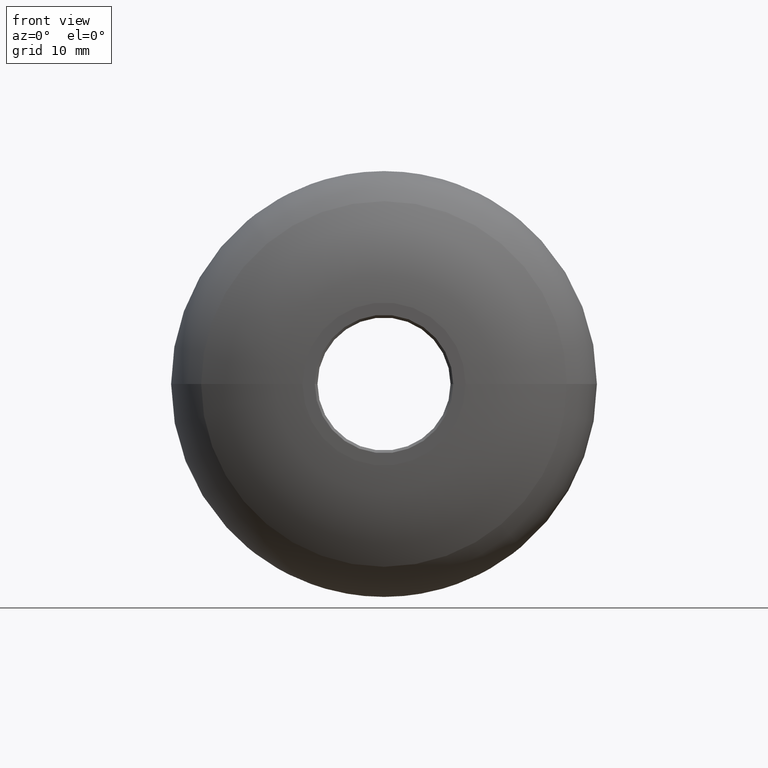
[diagram: clean part render]
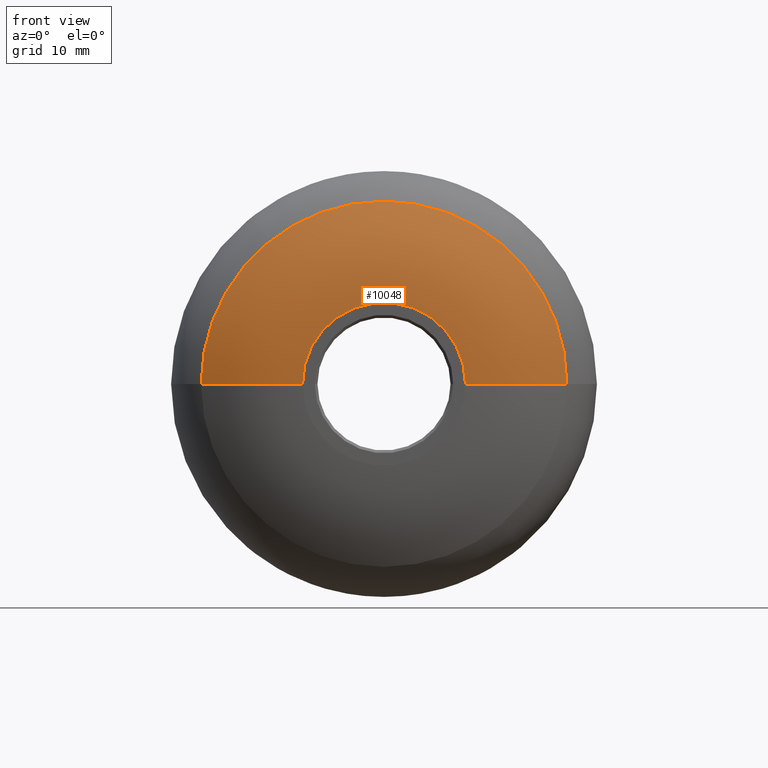
[diagram: same view with one face highlighted and labeled with its STEP entity id]
A machine part, front view. The second image highlights one B-rep face of the part: STEP entity #10048.
In plain terms, the highlighted toroidal blend (fillet) surface has major radius 7.659 mm and minor (blend) radius 16.4313 mm.
Its self-contained STEP definition (entity closure, byte-faithful):
#110 = ORIENTED_EDGE ( 'NONE', *, *, #7656, .T. ) ;
#470 = AXIS2_PLACEMENT_3D ( 'NONE', #10095, #2491, #10847 ) ;
#679 = DIRECTION ( 'NONE',  ( -0.000000000000000000, 0.000000000000000000, -1.000000000000000000 ) ) ;
#749 = VERTEX_POINT ( 'NONE', #9187 ) ;
#832 = EDGE_LOOP ( 'NONE', ( #10433, #110, #2088, #8148 ) ) ;
#849 = EDGE_CURVE ( 'NONE', #864, #4831, #10438, .T. ) ;
#864 = VERTEX_POINT ( 'NONE', #7247 ) ;
#1071 = CARTESIAN_POINT ( 'NONE',  ( 0.000000000000000000, 16.43130050804137809, 0.000000000000000000 ) ) ;
#2088 = ORIENTED_EDGE ( 'NONE', *, *, #7345, .F. ) ;
#2277 = CARTESIAN_POINT ( 'NONE',  ( -7.658953207742919211, 16.43130050804137809, 0.000000000000000000 ) ) ;
#2491 = DIRECTION ( 'NONE',  ( -1.224646799147353207E-16, 3.845537904261165162E-34, 1.000000000000000000 ) ) ;
#2928 = DIRECTION ( 'NONE',  ( -1.000000000000000000, 0.000000000000000000, 0.000000000000000000 ) ) ;
#3590 = TOROIDAL_SURFACE ( 'NONE', #8318, 7.658953207742919211, 16.43130050804137454 ) ;
#3937 = CARTESIAN_POINT ( 'NONE',  ( 7.658953207742919211, -2.405003212995326053E-17, 1.520593612288826337E-15 ) ) ;
#4589 = DIRECTION ( 'NONE',  ( 3.140119997813719199E-18, 1.000000000000000000, -0.000000000000000000 ) ) ;
#4831 = VERTEX_POINT ( 'NONE', #3937 ) ;
#5181 = CARTESIAN_POINT ( 'NONE',  ( 17.17422503348586815, 3.035508688675746747, 2.103235971509481566E-15 ) ) ;
#5360 = AXIS2_PLACEMENT_3D ( 'NONE', #2277, #679, #6596 ) ;
#5398 = FACE_OUTER_BOUND ( 'NONE', #832, .T. ) ;
#5524 = CARTESIAN_POINT ( 'NONE',  ( 0.000000000000000000, 0.000000000000000000, 0.000000000000000000 ) ) ;
#5965 = VERTEX_POINT ( 'NONE', #5181 ) ;
#6596 = DIRECTION ( 'NONE',  ( -1.000000000000000000, 0.000000000000000000, 0.000000000000000000 ) ) ;
#6730 = CIRCLE ( 'NONE', #5360, 16.43130050804137454 ) ;
#7247 = CARTESIAN_POINT ( 'NONE',  ( -7.658953207742919211, 2.405003212995306948E-17, 0.000000000000000000 ) ) ;
#7345 = EDGE_CURVE ( 'NONE', #749, #5965, #10744, .T. ) ;
#7656 = EDGE_CURVE ( 'NONE', #4831, #5965, #8879, .T. ) ;
#7804 = DIRECTION ( 'NONE',  ( -1.000000000000000000, 3.140119997813719199E-18, 0.000000000000000000 ) ) ;
#8148 = ORIENTED_EDGE ( 'NONE', *, *, #8508, .F. ) ;
#8318 = AXIS2_PLACEMENT_3D ( 'NONE', #1071, #10429, #7804 ) ;
#8508 = EDGE_CURVE ( 'NONE', #864, #749, #6730, .T. ) ;
#8643 = AXIS2_PLACEMENT_3D ( 'NONE', #10621, #4589, #2928 ) ;
#8879 = CIRCLE ( 'NONE', #470, 16.43130050804137454 ) ;
#9187 = CARTESIAN_POINT ( 'NONE',  ( -17.17422503348586815, 3.035508688675746747, 0.000000000000000000 ) ) ;
#9935 = DIRECTION ( 'NONE',  ( 3.140119997813719199E-18, 1.000000000000000000, -0.000000000000000000 ) ) ;
#10048 = ADVANCED_FACE ( 'NONE', ( #5398 ), #3590, .T. ) ;
#10095 = CARTESIAN_POINT ( 'NONE',  ( 7.658953207742919211, 16.43130050804137809, 9.379512530681718976E-16 ) ) ;
#10162 = AXIS2_PLACEMENT_3D ( 'NONE', #5524, #9935, #10802 ) ;
#10429 = DIRECTION ( 'NONE',  ( 3.140119997813719199E-18, 1.000000000000000000, -0.000000000000000000 ) ) ;
#10433 = ORIENTED_EDGE ( 'NONE', *, *, #849, .T. ) ;
#10438 = CIRCLE ( 'NONE', #10162, 7.658953207742919211 ) ;
#10621 = CARTESIAN_POINT ( 'NONE',  ( 9.531861536848009143E-18, 3.035508688675747635, 0.000000000000000000 ) ) ;
#10744 = CIRCLE ( 'NONE', #8643, 17.17422503348586815 ) ;
#10802 = DIRECTION ( 'NONE',  ( -1.000000000000000000, 3.140119997813718814E-18, 0.000000000000000000 ) ) ;
#10847 = DIRECTION ( 'NONE',  ( 1.000000000000000000, 0.000000000000000000, 1.224646799147353207E-16 ) ) ;